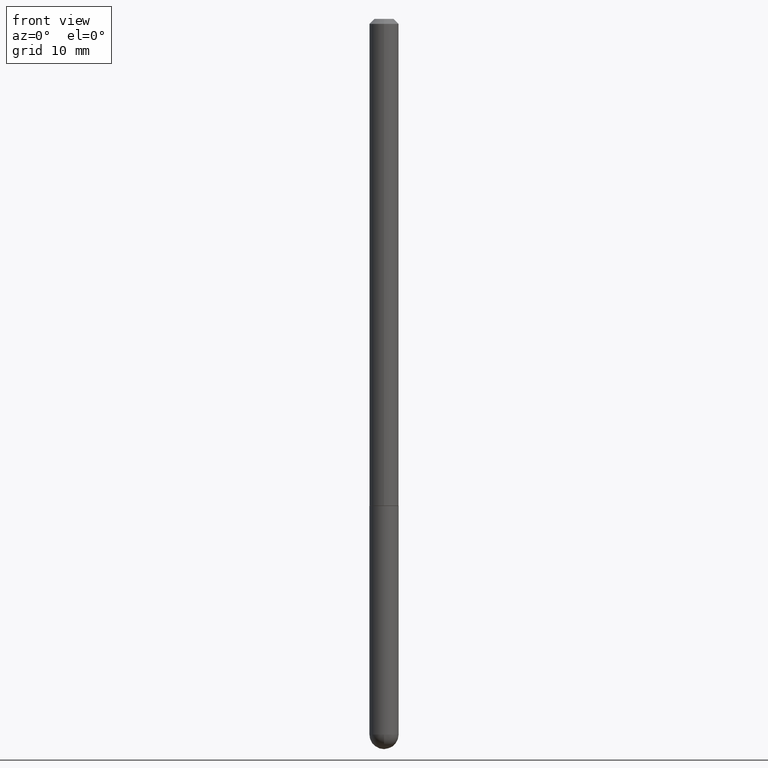
[diagram: clean part render]
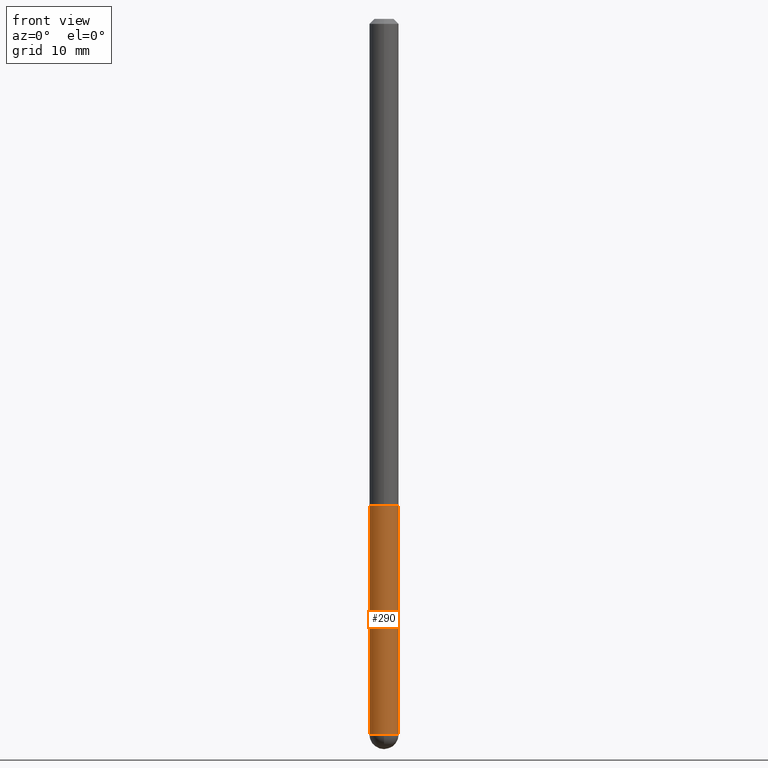
[diagram: same view with one face highlighted and labeled with its STEP entity id]
A machine part, front view. The second image highlights one B-rep face of the part: STEP entity #290.
In plain terms, the highlighted cylindrical surface (edge-blend (fillet) strip) has radius 1.4999 mm, axis along (-0, 0, 1).
Its self-contained STEP definition (entity closure, byte-faithful):
#7 = EDGE_LOOP ( 'NONE', ( #69, #233, #79, #101, #328 ) ) ;
#12 = AXIS2_PLACEMENT_3D ( 'NONE', #348, #59, #24 ) ;
#15 = LINE ( 'NONE', #180, #33 ) ;
#19 = CARTESIAN_POINT ( 'NONE',  ( -4.195754854662709114E-16, -0.05905000000001047605, -2.893749999999999822 ) ) ;
#21 = LINE ( 'NONE', #116, #403 ) ;
#24 = DIRECTION ( 'NONE',  ( 1.000000000000000000, -6.982962677686266711E-15, 4.876176775795935793E-29 ) ) ;
#32 = VERTEX_POINT ( 'NONE', #236 ) ;
#33 = VECTOR ( 'NONE', #179, 39.37007874015748143 ) ;
#43 = EDGE_CURVE ( 'NONE', #316, #256, #75, .T. ) ;
#59 = DIRECTION ( 'NONE',  ( -2.445468806185136597E-29, 3.491481338843145583E-15, 1.000000000000000000 ) ) ;
#69 = ORIENTED_EDGE ( 'NONE', *, *, #148, .F. ) ;
#75 = CIRCLE ( 'NONE', #215, 0.05905000000000001914 ) ;
#79 = ORIENTED_EDGE ( 'NONE', *, *, #113, .T. ) ;
#95 = CARTESIAN_POINT ( 'NONE',  ( 7.076575357898237682E-29, -1.010347412427735067E-14, -2.893749999999999822 ) ) ;
#101 = ORIENTED_EDGE ( 'NONE', *, *, #226, .T. ) ;
#111 = AXIS2_PLACEMENT_3D ( 'NONE', #95, #155, #352 ) ;
#113 = EDGE_CURVE ( 'NONE', #199, #32, #300, .T. ) ;
#116 = CARTESIAN_POINT ( 'NONE',  ( -0.05905000000000001914, 4.195754854663392958E-16, -2.904631170795522943E-30 ) ) ;
#120 = DIRECTION ( 'NONE',  ( -2.445468806185136597E-29, 3.491481338843145583E-15, 1.000000000000000000 ) ) ;
#128 = CARTESIAN_POINT ( 'NONE',  ( 0.05905000000000001914, -7.285324961630105839E-15, -1.968499999999999694 ) ) ;
#133 = DIRECTION ( 'NONE',  ( 1.000000000000000000, -6.982962677686270655E-15, 0.000000000000000000 ) ) ;
#148 = EDGE_CURVE ( 'NONE', #354, #316, #21, .T. ) ;
#155 = DIRECTION ( 'NONE',  ( -2.445468806185136597E-29, 3.491481338843145583E-15, 1.000000000000000000 ) ) ;
#157 = FACE_OUTER_BOUND ( 'NONE', #7, .T. ) ;
#179 = DIRECTION ( 'NONE',  ( -2.445468806185136877E-29, 3.491481338843145188E-15, 1.000000000000000000 ) ) ;
#180 = CARTESIAN_POINT ( 'NONE',  ( 0.05905000000000001914, -4.123439461173741806E-16, 2.879382386107500921E-30 ) ) ;
#186 = CARTESIAN_POINT ( 'NONE',  ( -0.05905000000000001914, -8.068652084428701697E-15, -1.968499999999999694 ) ) ;
#199 = VERTEX_POINT ( 'NONE', #19 ) ;
#215 = AXIS2_PLACEMENT_3D ( 'NONE', #301, #325, #133 ) ;
#226 = EDGE_CURVE ( 'NONE', #32, #256, #15, .T. ) ;
#227 = CARTESIAN_POINT ( 'NONE',  ( -0.05905000000000001914, -8.068652084428701697E-15, -2.893749999999999822 ) ) ;
#233 = ORIENTED_EDGE ( 'NONE', *, *, #324, .T. ) ;
#236 = CARTESIAN_POINT ( 'NONE',  ( 0.05905000000000001914, -8.900571516012416899E-15, -2.893749999999999822 ) ) ;
#238 = CIRCLE ( 'NONE', #111, 0.05905000000000001914 ) ;
#256 = VERTEX_POINT ( 'NONE', #128 ) ;
#280 = AXIS2_PLACEMENT_3D ( 'NONE', #400, #120, #304 ) ;
#288 = CYLINDRICAL_SURFACE ( 'NONE', #12, 0.05905000000000001914 ) ;
#290 = ADVANCED_FACE ( 'NONE', ( #157 ), #288, .T. ) ;
#300 = CIRCLE ( 'NONE', #280, 0.05905000000000001914 ) ;
#301 = CARTESIAN_POINT ( 'NONE',  ( 4.813905344975440714E-29, -6.872981015512730918E-15, -1.968499999999999694 ) ) ;
#304 = DIRECTION ( 'NONE',  ( 1.000000000000000000, -6.982962677686270655E-15, 0.000000000000000000 ) ) ;
#310 = DIRECTION ( 'NONE',  ( -2.445468806185136877E-29, 3.491481338843145188E-15, 1.000000000000000000 ) ) ;
#316 = VERTEX_POINT ( 'NONE', #186 ) ;
#324 = EDGE_CURVE ( 'NONE', #354, #199, #238, .T. ) ;
#325 = DIRECTION ( 'NONE',  ( -2.445468806185136597E-29, 3.491481338843145583E-15, 1.000000000000000000 ) ) ;
#328 = ORIENTED_EDGE ( 'NONE', *, *, #43, .F. ) ;
#348 = CARTESIAN_POINT ( 'NONE',  ( 0.000000000000000000, 0.000000000000000000, 0.000000000000000000 ) ) ;
#352 = DIRECTION ( 'NONE',  ( 1.000000000000000000, -6.982962677686270655E-15, 0.000000000000000000 ) ) ;
#354 = VERTEX_POINT ( 'NONE', #227 ) ;
#400 = CARTESIAN_POINT ( 'NONE',  ( 7.076575357898237682E-29, -1.010347412427735067E-14, -2.893749999999999822 ) ) ;
#403 = VECTOR ( 'NONE', #310, 39.37007874015748143 ) ;